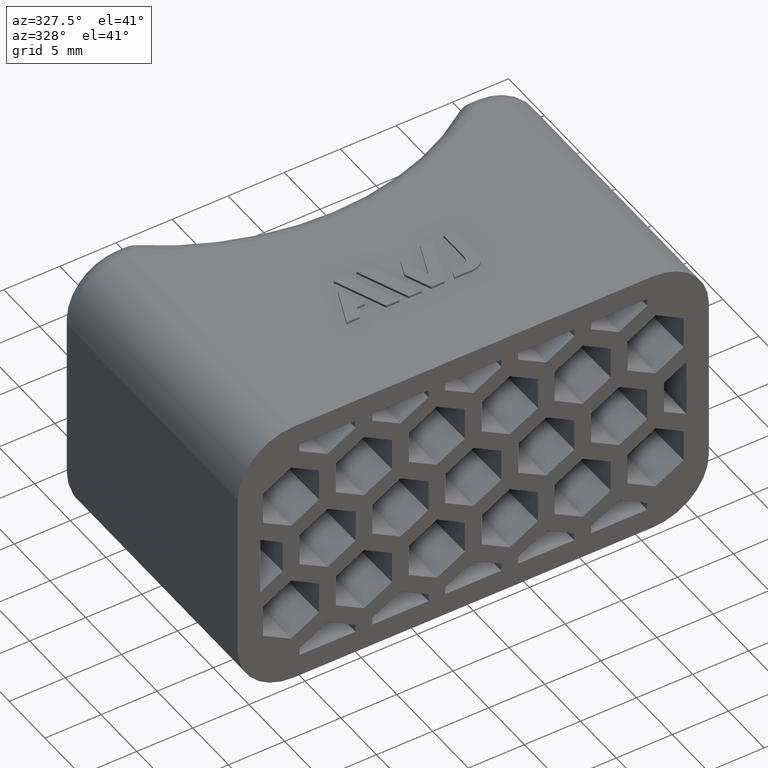
[diagram: clean part render]
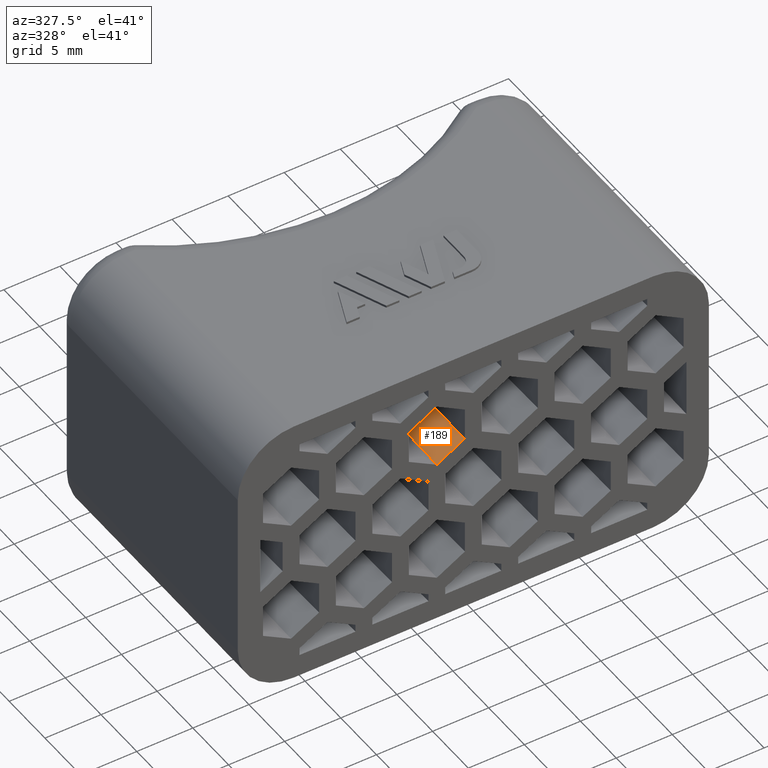
[diagram: same view with one face highlighted and labeled with its STEP entity id]
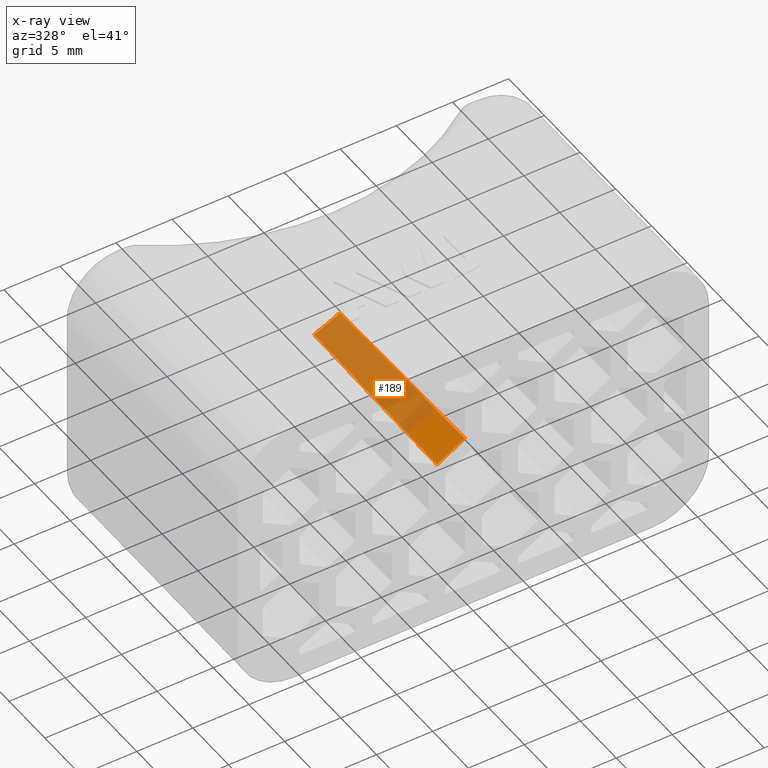
[diagram: x-ray of the same camera — body ghosted, the highlighted face saturated]
A machine part, auxiliary view. The second image highlights one B-rep face of the part: STEP entity #189.
The next image is the same camera in x-ray: the body ghosted, the highlighted face saturated — about 75% of this face is hidden behind the body in this view.
In plain terms, the highlighted planar face has unit normal (0.4999, 0.0175, -0.8659).
Its self-contained STEP definition (entity closure, byte-faithful):
#189 = ADVANCED_FACE( '', ( #594 ), #595, .F. );
#594 = FACE_OUTER_BOUND( '', #1140, .T. );
#595 = PLANE( '', #1141 );
#1140 = EDGE_LOOP( '', ( #2429, #2430, #2431, #2432 ) );
#1141 = AXIS2_PLACEMENT_3D( '', #2433, #2434, #2435 );
#2429 = ORIENTED_EDGE( '', *, *, #3920, .T. );
#2430 = ORIENTED_EDGE( '', *, *, #3921, .T. );
#2431 = ORIENTED_EDGE( '', *, *, #3561, .T. );
#2432 = ORIENTED_EDGE( '', *, *, #3922, .F. );
#2433 = CARTESIAN_POINT( '', ( 0.499999999999987, -6.93889390390723E-015, 4.90747728811182 ) );
#2434 = DIRECTION( '', ( 0.499923847578195, 0.0174524064372835, -0.865893503920754 ) );
#2435 = DIRECTION( '', ( -0.866025403784439, 0.000000000000000, -0.500000000000000 ) );
#3561 = EDGE_CURVE( '', #4291, #4288, #4292, .T. );
#3920 = EDGE_CURVE( '', #4895, #4896, #4897, .T. );
#3921 = EDGE_CURVE( '', #4896, #4291, #4898, .T. );
#3922 = EDGE_CURVE( '', #4895, #4288, #4899, .T. );
#4288 = VERTEX_POINT( '', #5436 );
#4291 = VERTEX_POINT( '', #5440 );
#4292 = LINE( '', #5441, #5442 );
#4895 = VERTEX_POINT( '', #6326 );
#4896 = VERTEX_POINT( '', #6327 );
#4897 = ELLIPSE( '', #6328, 31.5281265841422, 27.3000000000000 );
#4898 = LINE( '', #6329, #6330 );
#4899 = LINE( '', #6331, #6332 );
#5436 = CARTESIAN_POINT( '', ( -0.750000000000016, -6.93889390390723E-015, 4.18578945162478 ) );
#5440 = CARTESIAN_POINT( '', ( -3.25000000000002, -6.93889390390723E-015, 2.74241377865072 ) );
#5441 = CARTESIAN_POINT( '', ( 0.499999999999987, -6.93889390390723E-015, 4.90747728811182 ) );
#5442 = VECTOR( '', #6831, 1000.00000000000 );
#6326 = CARTESIAN_POINT( '', ( -1.04708673772129, 17.0200878050590, 4.35731255962083 ) );
#6327 = CARTESIAN_POINT( '', ( -3.25000000000001, 17.1941426994090, 3.08896813593829 ) );
#6328 = AXIS2_PLACEMENT_3D( '', #7344, #7345, #7346 );
#6329 = CARTESIAN_POINT( '', ( -3.25000000000001, -0.0567059248553561, 2.74127084959132 ) );
#6330 = VECTOR( '', #7347, 1000.00000000000 );
#6331 = CARTESIAN_POINT( '', ( -0.749746203692281, -0.0145399807321492, 4.18564292225819 ) );
#6332 = VECTOR( '', #7348, 1000.00000000000 );
#6831 = DIRECTION( '', ( 0.866025403784439, 0.000000000000000, 0.500000000000000 ) );
#7344 = CARTESIAN_POINT( '', ( 0.000000000000000, 44.3000000000000, 5.51168517166056 ) );
#7345 = DIRECTION( '', ( 0.499923847578195, 0.0174524064372835, -0.865893503920754 ) );
#7346 = DIRECTION( '', ( 0.865366346075250, 0.0302100515148758, 0.500228387706894 ) );
#7347 = DIRECTION( '', ( -3.00523943436880E-018, -0.999796942337605, -0.0201512801671579 ) );
#7348 = DIRECTION( '', ( 0.0174515205435363, -0.999796942337605, -0.0100756400835790 ) );